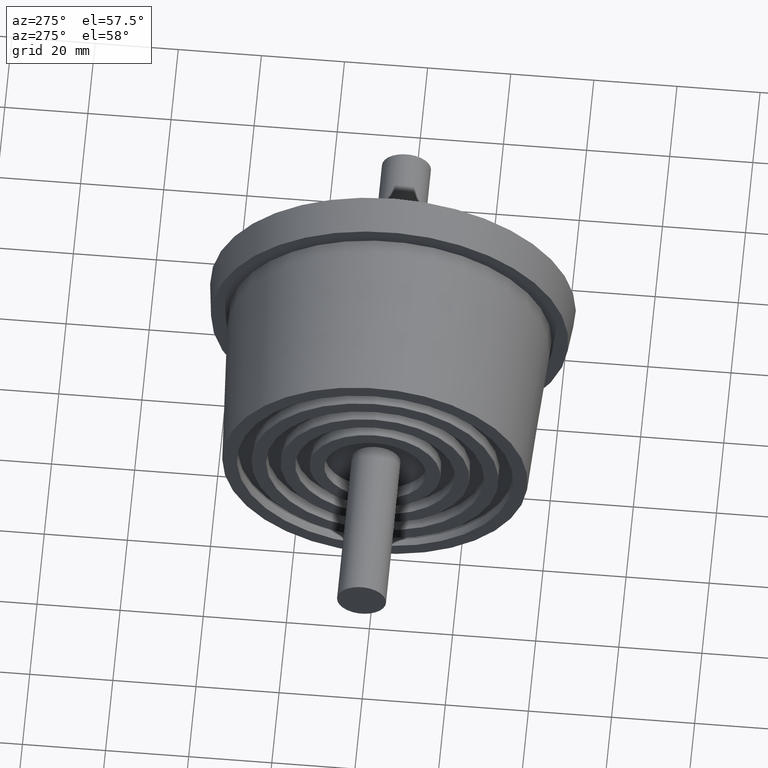
[diagram: clean part render]
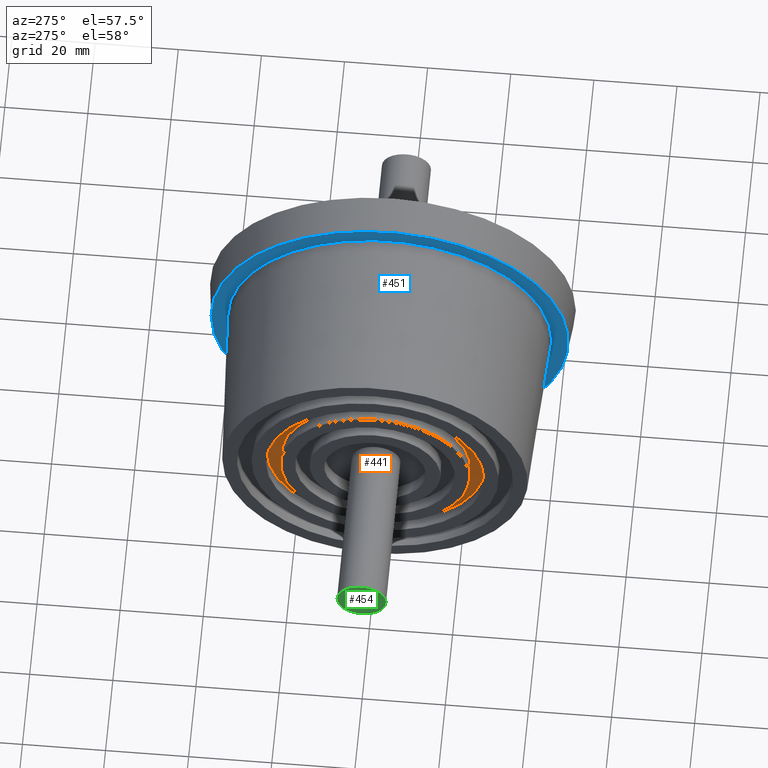
[diagram: same view with three faces highlighted in distinct colors, each labeled with its STEP entity id]
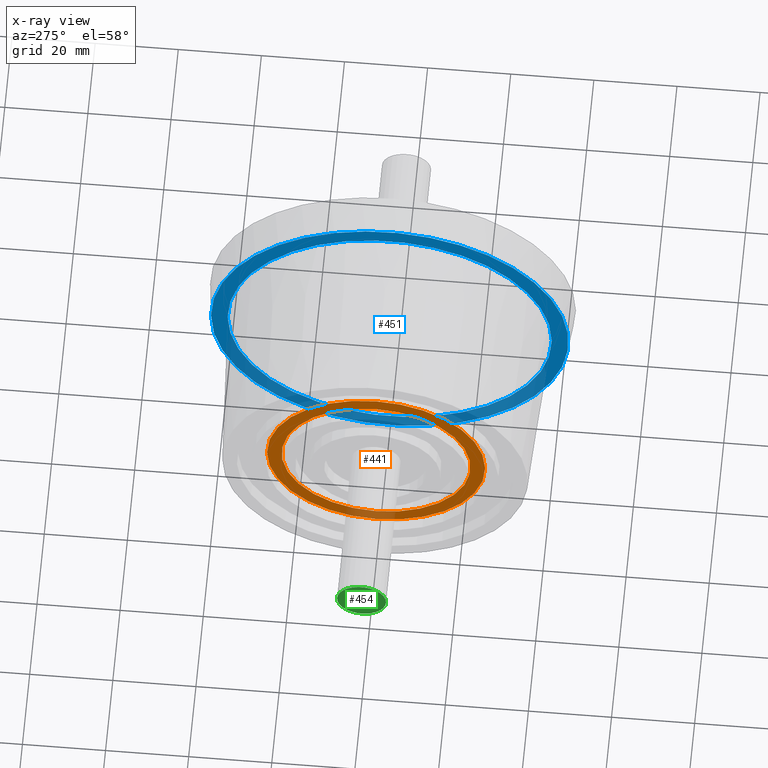
[diagram: x-ray of the same camera — body ghosted, the three highlighted faces saturated]
A machine part, auxiliary view with three faces highlighted in distinct colors.
The next image is the same camera in x-ray (body ghosted, the three faces saturated) — at least one of them is partly hidden behind the body in this view.
Their STEP definitions:

[orange] entity #441 — the highlighted planar face has unit normal (-1, -0, 0).
#28=PLANE('',#515);
#63=FACE_BOUND('',#169,.T.);
#102=FACE_OUTER_BOUND('',#168,.T.);
#168=EDGE_LOOP('',(#368));
#169=EDGE_LOOP('',(#369));
#225=CIRCLE('',#510,22.75);
#227=CIRCLE('',#513,26.25);
#265=VERTEX_POINT('',#783);
#267=VERTEX_POINT('',#788);
#305=EDGE_CURVE('',#265,#265,#225,.T.);
#307=EDGE_CURVE('',#267,#267,#227,.T.);
#368=ORIENTED_EDGE('',*,*,#307,.F.);
#369=ORIENTED_EDGE('',*,*,#305,.F.);
#441=ADVANCED_FACE('',(#102,#63),#28,.T.);
#510=AXIS2_PLACEMENT_3D('',#784,#644,#645);
#513=AXIS2_PLACEMENT_3D('',#789,#650,#651);
#515=AXIS2_PLACEMENT_3D('',#792,#654,#655);
#644=DIRECTION('center_axis',(-1.,-1.83697019872103E-16,0.));
#645=DIRECTION('ref_axis',(0.,0.,-1.));
#650=DIRECTION('center_axis',(1.,1.83697019872103E-16,0.));
#651=DIRECTION('ref_axis',(0.,0.,-1.));
#654=DIRECTION('center_axis',(-1.,-1.83697019872103E-16,0.));
#655=DIRECTION('ref_axis',(0.,0.,1.));
#783=CARTESIAN_POINT('',(-21.75,1.01339522629443E-14,22.75));
#784=CARTESIAN_POINT('Origin',(-21.75,7.34788079488412E-15,0.));
#788=CARTESIAN_POINT('',(-21.75,1.05625786426459E-14,26.25));
#789=CARTESIAN_POINT('Origin',(-21.75,7.34788079488412E-15,0.));
#792=CARTESIAN_POINT('Origin',(-21.75,7.0411560073363E-15,-1.3957370996311E-15));

[blue] entity #451 — the highlighted planar face has unit normal (-1, -0, 0).
#35=PLANE('',#531);
#73=FACE_BOUND('',#189,.T.);
#112=FACE_OUTER_BOUND('',#188,.T.);
#188=EDGE_LOOP('',(#388));
#189=EDGE_LOOP('',(#389));
#234=CIRCLE('',#530,39.);
#235=CIRCLE('',#532,43.);
#274=VERTEX_POINT('',#812);
#275=VERTEX_POINT('',#815);
#314=EDGE_CURVE('',#274,#274,#234,.T.);
#315=EDGE_CURVE('',#275,#275,#235,.T.);
#388=ORIENTED_EDGE('',*,*,#315,.F.);
#389=ORIENTED_EDGE('',*,*,#314,.T.);
#451=ADVANCED_FACE('',(#112,#73),#35,.T.);
#530=AXIS2_PLACEMENT_3D('',#813,#684,#685);
#531=AXIS2_PLACEMENT_3D('',#814,#686,#687);
#532=AXIS2_PLACEMENT_3D('',#816,#688,#689);
#684=DIRECTION('center_axis',(1.,1.83697019872103E-16,0.));
#685=DIRECTION('ref_axis',(0.,0.,-1.));
#686=DIRECTION('center_axis',(-1.,-1.83697019872103E-16,0.));
#687=DIRECTION('ref_axis',(0.,0.,1.));
#688=DIRECTION('center_axis',(1.,1.83697019872103E-16,0.));
#689=DIRECTION('ref_axis',(0.,0.,-1.));
#812=CARTESIAN_POINT('',(15.75,39.,0.));
#813=CARTESIAN_POINT('Origin',(15.75,1.4236519040088E-14,0.));
#814=CARTESIAN_POINT('Origin',(15.75,43.,0.));
#815=CARTESIAN_POINT('',(15.75,43.,0.));
#816=CARTESIAN_POINT('Origin',(15.75,1.4236519040088E-14,0.));

[green] entity #454 — the highlighted planar face has unit normal (-1, -0, 0).
#36=PLANE('',#536);
#115=FACE_OUTER_BOUND('',#194,.T.);
#194=EDGE_LOOP('',(#394));
#237=CIRCLE('',#537,5.9);
#277=VERTEX_POINT('',#822);
#317=EDGE_CURVE('',#277,#277,#237,.T.);
#394=ORIENTED_EDGE('',*,*,#317,.F.);
#454=ADVANCED_FACE('',(#115),#36,.T.);
#536=AXIS2_PLACEMENT_3D('',#821,#696,#697);
#537=AXIS2_PLACEMENT_3D('',#823,#698,#699);
#696=DIRECTION('center_axis',(-1.,-1.83697019872103E-16,0.));
#697=DIRECTION('ref_axis',(0.,0.,1.));
#698=DIRECTION('center_axis',(1.,1.83697019872103E-16,0.));
#699=DIRECTION('ref_axis',(0.,0.,-1.));
#821=CARTESIAN_POINT('Origin',(-61.75,5.9,0.));
#822=CARTESIAN_POINT('',(-61.75,5.9,0.));
#823=CARTESIAN_POINT('Origin',(-61.75,0.,0.));